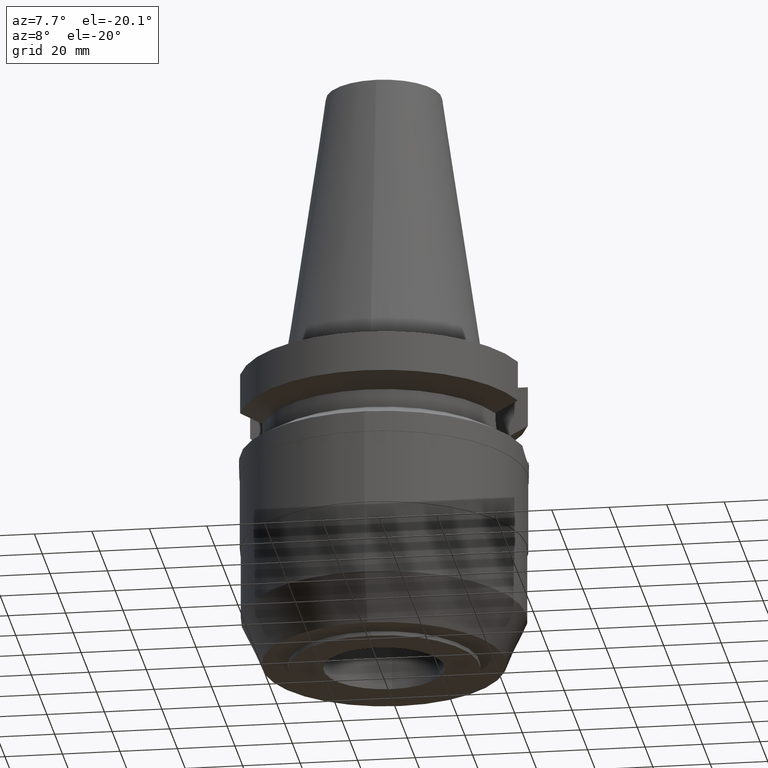
[diagram: clean part render]
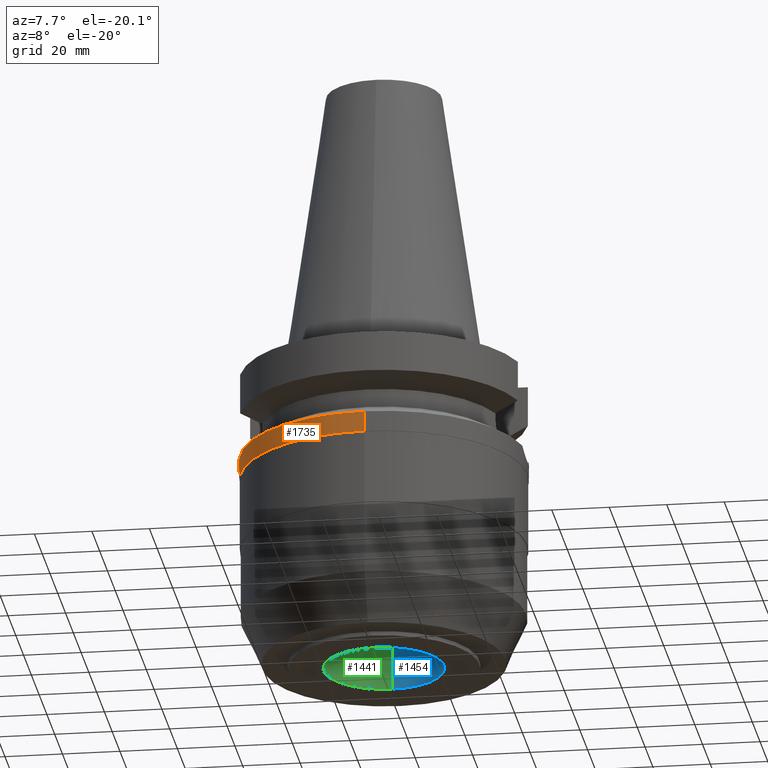
[diagram: same view with three faces highlighted in distinct colors, each labeled with its STEP entity id]
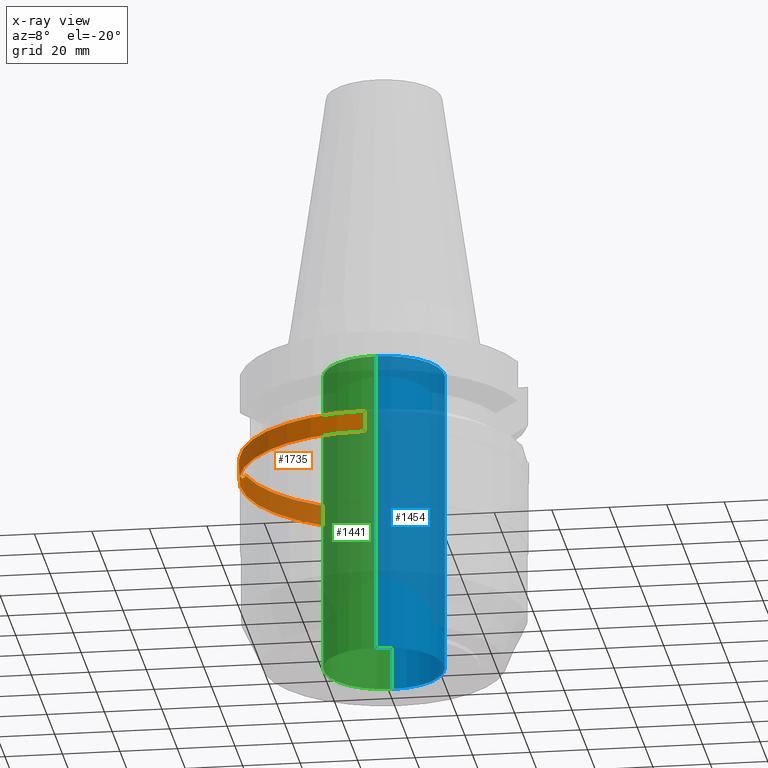
[diagram: x-ray of the same camera — body ghosted, the three highlighted faces saturated]
A machine part, auxiliary view with three faces highlighted in distinct colors.
The next image is the same camera in x-ray (body ghosted, the three faces saturated) — at least one of them is partly hidden behind the body in this view.
Their STEP definitions:

[orange] entity #1735 — the highlighted cylindrical surface (partial cylindrical patch) has radius 50 mm, axis along (0, 0, -1).
#422=CARTESIAN_POINT('',(0.E0,2.599190366510E-14,-3.8E1));
#423=DIRECTION('',(0.E0,0.E0,1.E0));
#424=DIRECTION('',(0.E0,1.E0,0.E0));
#425=AXIS2_PLACEMENT_3D('',#422,#423,#424);
#468=DIRECTION('',(0.E0,2.152361642122E-14,-1.E0));
#469=VECTOR('',#468,7.262692235730E0);
#470=CARTESIAN_POINT('',(0.E0,5.E1,-3.073730776427E1));
#471=LINE('',#470,#469);
#489=CARTESIAN_POINT('',(-4.926250064874E1,-8.556052234130E0,
-3.073730776427E1));
#534=CARTESIAN_POINT('',(0.E0,0.E0,-3.073730776427E1));
#535=DIRECTION('',(0.E0,0.E0,-1.E0));
#536=DIRECTION('',(0.E0,-1.E0,0.E0));
#537=AXIS2_PLACEMENT_3D('',#534,#535,#536);
#556=CARTESIAN_POINT('',(-4.926250064874E1,8.556052234130E0,-3.073730776427E1));
#557=CARTESIAN_POINT('',(-4.938257429578E1,7.864713757777E0,-3.135428265030E1));
#558=CARTESIAN_POINT('',(-4.960817496728E1,6.393786706496E0,-3.240301946928E1));
#559=CARTESIAN_POINT('',(-4.986668428455E1,3.937615156723E0,-3.347900540662E1));
#560=CARTESIAN_POINT('',(-5.000665023458E1,1.312501551321E0,-3.402611852994E1));
#561=CARTESIAN_POINT('',(-5.000490610093E1,-1.372581968363E0,
-3.401943324888E1));
#562=CARTESIAN_POINT('',(-4.986266852405E1,-3.984389612787E0,
-3.346289568006E1));
#563=CARTESIAN_POINT('',(-4.960441900301E1,-6.419943407052E0,
-3.238628845284E1));
#564=CARTESIAN_POINT('',(-4.938106601788E1,-7.873397849302E0,
-3.134653266015E1));
#565=CARTESIAN_POINT('',(-4.926250064874E1,-8.556052234130E0,
-3.073730776427E1));
#570=DIRECTION('',(0.E0,-2.054527022026E-14,-1.E0));
#571=VECTOR('',#570,7.262692235730E0);
#572=CARTESIAN_POINT('',(0.E0,-5.E1,-3.073730776427E1));
#573=LINE('',#572,#571);
#583=CARTESIAN_POINT('',(-4.926250064874E1,8.556052234130E0,-3.073730776427E1));
#588=CARTESIAN_POINT('',(0.E0,0.E0,-3.073730776427E1));
#589=DIRECTION('',(0.E0,0.E0,-1.E0));
#590=DIRECTION('',(-9.852500129747E-1,1.711210446826E-1,0.E0));
#591=AXIS2_PLACEMENT_3D('',#588,#589,#590);
#1128=CARTESIAN_POINT('',(0.E0,-5.E1,-3.8E1));
#1129=CARTESIAN_POINT('',(0.E0,5.E1,-3.8E1));
#1130=VERTEX_POINT('',#1128);
#1131=VERTEX_POINT('',#1129);
#1135=CARTESIAN_POINT('',(0.E0,5.E1,-3.073730776427E1));
#1136=VERTEX_POINT('',#1135);
#1137=CARTESIAN_POINT('',(0.E0,-5.E1,-3.073730776427E1));
#1138=VERTEX_POINT('',#1137);
#1150=VERTEX_POINT('',#489);
#1155=VERTEX_POINT('',#583);
#1721=CARTESIAN_POINT('',(0.E0,2.599190366510E-14,1.1224E2));
#1722=DIRECTION('',(0.E0,0.E0,-1.E0));
#1723=DIRECTION('',(0.E0,-1.E0,0.E0));
#1724=AXIS2_PLACEMENT_3D('',#1721,#1722,#1723);
#1725=CYLINDRICAL_SURFACE('',#1724,5.E1);
#1726=ORIENTED_EDGE('',*,*,#1702,.T.);
#1727=ORIENTED_EDGE('',*,*,#1691,.F.);
#1728=ORIENTED_EDGE('',*,*,#1645,.T.);
#1729=ORIENTED_EDGE('',*,*,#1622,.F.);
#1730=ORIENTED_EDGE('',*,*,#1642,.F.);
#1732=ORIENTED_EDGE('',*,*,#1731,.F.);
#1733=EDGE_LOOP('',(#1726,#1727,#1728,#1729,#1730,#1732));
#1734=FACE_OUTER_BOUND('',#1733,.F.);
#426=CIRCLE('',#425,5.E1);
#538=CIRCLE('',#537,5.E1);
#566=B_SPLINE_CURVE_WITH_KNOTS('',3,(#556,#557,#558,#559,#560,#561,#562,#563,
#564,#565),.UNSPECIFIED.,.F.,.F.,(4,1,1,1,1,1,1,4),(0.E0,1.428571428571E-1,
2.857142857143E-1,4.285714285714E-1,5.714285714286E-1,7.142857142857E-1,
8.571428571429E-1,1.E0),.UNSPECIFIED.);
#592=CIRCLE('',#591,5.E1);
#1622=EDGE_CURVE('',#1131,#1130,#426,.T.);
#1642=EDGE_CURVE('',#1136,#1131,#471,.T.);
#1645=EDGE_CURVE('',#1138,#1130,#573,.T.);
#1691=EDGE_CURVE('',#1138,#1150,#538,.T.);
#1702=EDGE_CURVE('',#1155,#1150,#566,.T.);
#1731=EDGE_CURVE('',#1155,#1136,#592,.T.);
#1735=ADVANCED_FACE('',(#1734),#1725,.T.);

[blue] entity #1454 — the highlighted cylindrical surface (partial cylindrical patch) has radius 21 mm, axis along (0, 0, -1).
#209=CARTESIAN_POINT('',(0.E0,2.599190366510E-14,1.989519660128E-13));
#210=DIRECTION('',(0.E0,0.E0,1.E0));
#211=DIRECTION('',(0.E0,-1.E0,0.E0));
#212=AXIS2_PLACEMENT_3D('',#209,#210,#211);
#224=DIRECTION('',(0.E0,0.E0,1.E0));
#225=VECTOR('',#224,1.07E2);
#226=CARTESIAN_POINT('',(0.E0,-2.1E1,-1.07E2));
#227=LINE('',#226,#225);
#239=DIRECTION('',(0.E0,0.E0,1.E0));
#240=VECTOR('',#239,1.07E2);
#241=CARTESIAN_POINT('',(0.E0,2.1E1,-1.07E2));
#242=LINE('',#241,#240);
#270=CARTESIAN_POINT('',(0.E0,2.599190366510E-14,-1.07E2));
#271=DIRECTION('',(0.E0,0.E0,-1.E0));
#272=DIRECTION('',(0.E0,1.E0,0.E0));
#273=AXIS2_PLACEMENT_3D('',#270,#271,#272);
#1092=CARTESIAN_POINT('',(0.E0,2.1E1,1.989519660128E-13));
#1093=VERTEX_POINT('',#1092);
#1094=CARTESIAN_POINT('',(0.E0,-2.1E1,1.989519660128E-13));
#1095=VERTEX_POINT('',#1094);
#1096=CARTESIAN_POINT('',(0.E0,2.1E1,-1.07E2));
#1097=VERTEX_POINT('',#1096);
#1098=CARTESIAN_POINT('',(0.E0,-2.1E1,-1.07E2));
#1099=VERTEX_POINT('',#1098);
#1442=CARTESIAN_POINT('',(0.E0,2.599190366510E-14,1.1224E2));
#1443=DIRECTION('',(0.E0,0.E0,-1.E0));
#1444=DIRECTION('',(0.E0,-1.E0,0.E0));
#1445=AXIS2_PLACEMENT_3D('',#1442,#1443,#1444);
#1446=CYLINDRICAL_SURFACE('',#1445,2.1E1);
#1447=ORIENTED_EDGE('',*,*,#1432,.T.);
#1448=ORIENTED_EDGE('',*,*,#1409,.F.);
#1449=ORIENTED_EDGE('',*,*,#1436,.F.);
#1451=ORIENTED_EDGE('',*,*,#1450,.F.);
#1452=EDGE_LOOP('',(#1447,#1448,#1449,#1451));
#1453=FACE_OUTER_BOUND('',#1452,.F.);
#213=CIRCLE('',#212,2.1E1);
#274=CIRCLE('',#273,2.1E1);
#1409=EDGE_CURVE('',#1095,#1093,#213,.T.);
#1432=EDGE_CURVE('',#1097,#1093,#242,.T.);
#1436=EDGE_CURVE('',#1099,#1095,#227,.T.);
#1450=EDGE_CURVE('',#1097,#1099,#274,.T.);
#1454=ADVANCED_FACE('',(#1453),#1446,.F.);

[green] entity #1441 — the highlighted cylindrical surface (partial cylindrical patch) has radius 21 mm, axis along (0, 0, -1).
#224=DIRECTION('',(0.E0,0.E0,1.E0));
#225=VECTOR('',#224,1.07E2);
#226=CARTESIAN_POINT('',(0.E0,-2.1E1,-1.07E2));
#227=LINE('',#226,#225);
#231=CARTESIAN_POINT('',(0.E0,2.599190366510E-14,1.989519660128E-13));
#232=DIRECTION('',(0.E0,0.E0,-1.E0));
#233=DIRECTION('',(0.E0,-1.E0,0.E0));
#234=AXIS2_PLACEMENT_3D('',#231,#232,#233);
#239=DIRECTION('',(0.E0,0.E0,1.E0));
#240=VECTOR('',#239,1.07E2);
#241=CARTESIAN_POINT('',(0.E0,2.1E1,-1.07E2));
#242=LINE('',#241,#240);
#262=CARTESIAN_POINT('',(0.E0,2.599190366510E-14,-1.07E2));
#263=DIRECTION('',(0.E0,0.E0,-1.E0));
#264=DIRECTION('',(0.E0,-1.E0,0.E0));
#265=AXIS2_PLACEMENT_3D('',#262,#263,#264);
#1092=CARTESIAN_POINT('',(0.E0,2.1E1,1.989519660128E-13));
#1093=VERTEX_POINT('',#1092);
#1094=CARTESIAN_POINT('',(0.E0,-2.1E1,1.989519660128E-13));
#1095=VERTEX_POINT('',#1094);
#1096=CARTESIAN_POINT('',(0.E0,2.1E1,-1.07E2));
#1097=VERTEX_POINT('',#1096);
#1098=CARTESIAN_POINT('',(0.E0,-2.1E1,-1.07E2));
#1099=VERTEX_POINT('',#1098);
#1427=CARTESIAN_POINT('',(0.E0,2.599190366510E-14,1.1224E2));
#1428=DIRECTION('',(0.E0,0.E0,-1.E0));
#1429=DIRECTION('',(0.E0,-1.E0,0.E0));
#1430=AXIS2_PLACEMENT_3D('',#1427,#1428,#1429);
#1431=CYLINDRICAL_SURFACE('',#1430,2.1E1);
#1433=ORIENTED_EDGE('',*,*,#1432,.F.);
#1435=ORIENTED_EDGE('',*,*,#1434,.F.);
#1437=ORIENTED_EDGE('',*,*,#1436,.T.);
#1438=ORIENTED_EDGE('',*,*,#1420,.T.);
#1439=EDGE_LOOP('',(#1433,#1435,#1437,#1438));
#1440=FACE_OUTER_BOUND('',#1439,.F.);
#235=CIRCLE('',#234,2.1E1);
#266=CIRCLE('',#265,2.1E1);
#1420=EDGE_CURVE('',#1095,#1093,#235,.T.);
#1432=EDGE_CURVE('',#1097,#1093,#242,.T.);
#1434=EDGE_CURVE('',#1099,#1097,#266,.T.);
#1436=EDGE_CURVE('',#1099,#1095,#227,.T.);
#1441=ADVANCED_FACE('',(#1440),#1431,.F.);